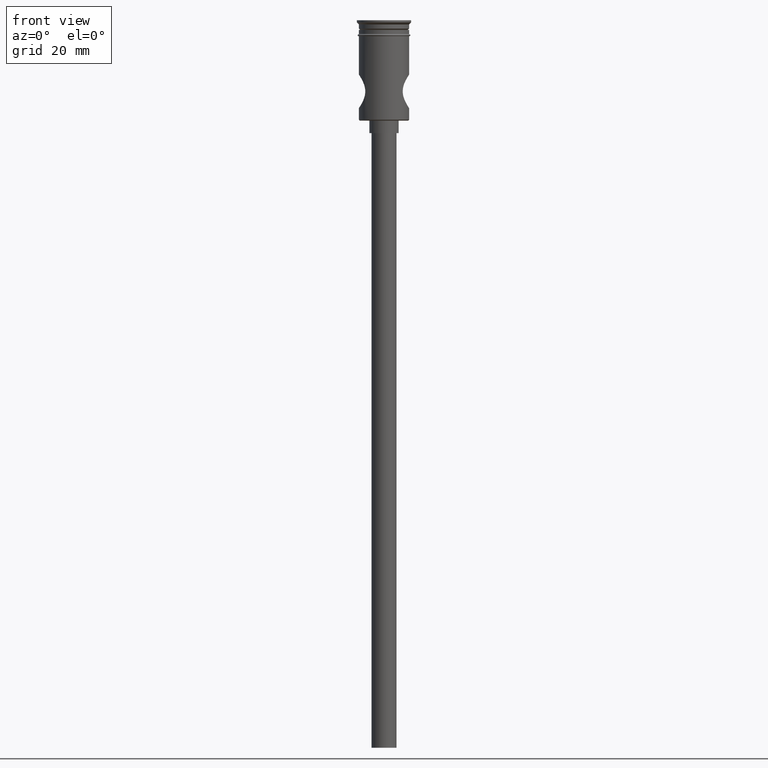
[diagram: clean part render]
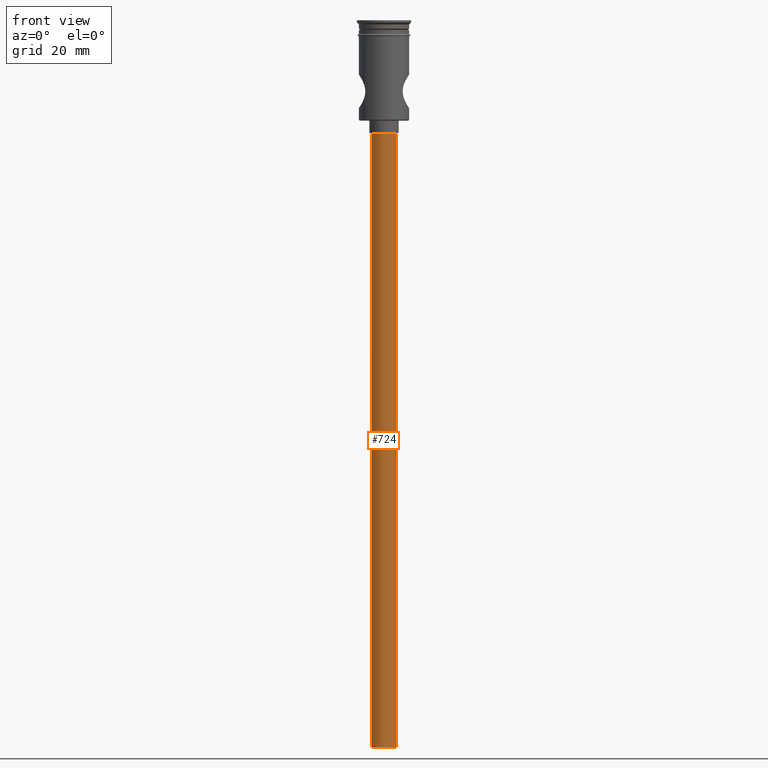
[diagram: same view with one face highlighted and labeled with its STEP entity id]
A machine part, front view. The second image highlights one B-rep face of the part: STEP entity #724.
In plain terms, the highlighted cylindrical surface (edge-blend (fillet) strip) has radius 3 mm, axis along (-0, -0, 1).
Its self-contained STEP definition (entity closure, byte-faithful):
#265 = LINE ( 'NONE', #841, #981 ) ;
#394 = EDGE_CURVE ( 'NONE', #1001, #1064, #746, .T. ) ;
#422 = DIRECTION ( 'NONE',  ( 1.000000000000000000, 0.000000000000000000, 0.000000000000000000 ) ) ;
#423 = CIRCLE ( 'NONE', #1414, 3.000000000000000444 ) ;
#432 = CYLINDRICAL_SURFACE ( 'NONE', #1363, 3.000000000000000444 ) ;
#472 = ORIENTED_EDGE ( 'NONE', *, *, #649, .F. ) ;
#499 = VECTOR ( 'NONE', #540, 1000.000000000000000 ) ;
#538 = FACE_OUTER_BOUND ( 'NONE', #1108, .T. ) ;
#540 = DIRECTION ( 'NONE',  ( -0.000000000000000000, -0.000000000000000000, 1.000000000000000000 ) ) ;
#570 = ORIENTED_EDGE ( 'NONE', *, *, #1200, .T. ) ;
#630 = CARTESIAN_POINT ( 'NONE',  ( 0.000000000000000000, 0.000000000000000000, -174.0000000000000000 ) ) ;
#649 = EDGE_CURVE ( 'NONE', #696, #1001, #423, .T. ) ;
#696 = VERTEX_POINT ( 'NONE', #947 ) ;
#724 = ADVANCED_FACE ( 'NONE', ( #538 ), #432, .T. ) ;
#746 = LINE ( 'NONE', #985, #499 ) ;
#791 = DIRECTION ( 'NONE',  ( 0.000000000000000000, 0.000000000000000000, -1.000000000000000000 ) ) ;
#806 = AXIS2_PLACEMENT_3D ( 'NONE', #926, #791, #1011 ) ;
#831 = DIRECTION ( 'NONE',  ( -1.000000000000000000, 0.000000000000000000, 0.000000000000000000 ) ) ;
#841 = CARTESIAN_POINT ( 'NONE',  ( 3.000000000000000444, 0.000000000000000000, -174.0000000000000000 ) ) ;
#893 = ORIENTED_EDGE ( 'NONE', *, *, #394, .F. ) ;
#926 = CARTESIAN_POINT ( 'NONE',  ( 0.000000000000000000, 0.000000000000000000, -27.00000000000000000 ) ) ;
#947 = CARTESIAN_POINT ( 'NONE',  ( 3.000000000000000444, 0.000000000000000000, -174.0000000000000000 ) ) ;
#981 = VECTOR ( 'NONE', #1412, 1000.000000000000000 ) ;
#985 = CARTESIAN_POINT ( 'NONE',  ( -3.000000000000000444, 3.673940397442060361E-16, -174.0000000000000000 ) ) ;
#1001 = VERTEX_POINT ( 'NONE', #1303 ) ;
#1011 = DIRECTION ( 'NONE',  ( -1.000000000000000000, 0.000000000000000000, 0.000000000000000000 ) ) ;
#1064 = VERTEX_POINT ( 'NONE', #1240 ) ;
#1065 = CARTESIAN_POINT ( 'NONE',  ( 3.000000000000000444, 0.000000000000000000, -27.00000000000000000 ) ) ;
#1079 = DIRECTION ( 'NONE',  ( 0.000000000000000000, 0.000000000000000000, -1.000000000000000000 ) ) ;
#1108 = EDGE_LOOP ( 'NONE', ( #893, #472, #1254, #570 ) ) ;
#1152 = CIRCLE ( 'NONE', #806, 3.000000000000000444 ) ;
#1200 = EDGE_CURVE ( 'NONE', #1245, #1064, #1152, .T. ) ;
#1240 = CARTESIAN_POINT ( 'NONE',  ( -3.000000000000000444, 3.673940397442060361E-16, -27.00000000000000000 ) ) ;
#1245 = VERTEX_POINT ( 'NONE', #1065 ) ;
#1254 = ORIENTED_EDGE ( 'NONE', *, *, #1307, .T. ) ;
#1303 = CARTESIAN_POINT ( 'NONE',  ( -3.000000000000000444, 3.673940397442060361E-16, -174.0000000000000000 ) ) ;
#1307 = EDGE_CURVE ( 'NONE', #696, #1245, #265, .T. ) ;
#1351 = DIRECTION ( 'NONE',  ( -0.000000000000000000, -0.000000000000000000, 1.000000000000000000 ) ) ;
#1363 = AXIS2_PLACEMENT_3D ( 'NONE', #630, #1351, #422 ) ;
#1412 = DIRECTION ( 'NONE',  ( -0.000000000000000000, -0.000000000000000000, 1.000000000000000000 ) ) ;
#1414 = AXIS2_PLACEMENT_3D ( 'NONE', #1429, #1079, #831 ) ;
#1429 = CARTESIAN_POINT ( 'NONE',  ( 0.000000000000000000, 0.000000000000000000, -174.0000000000000000 ) ) ;